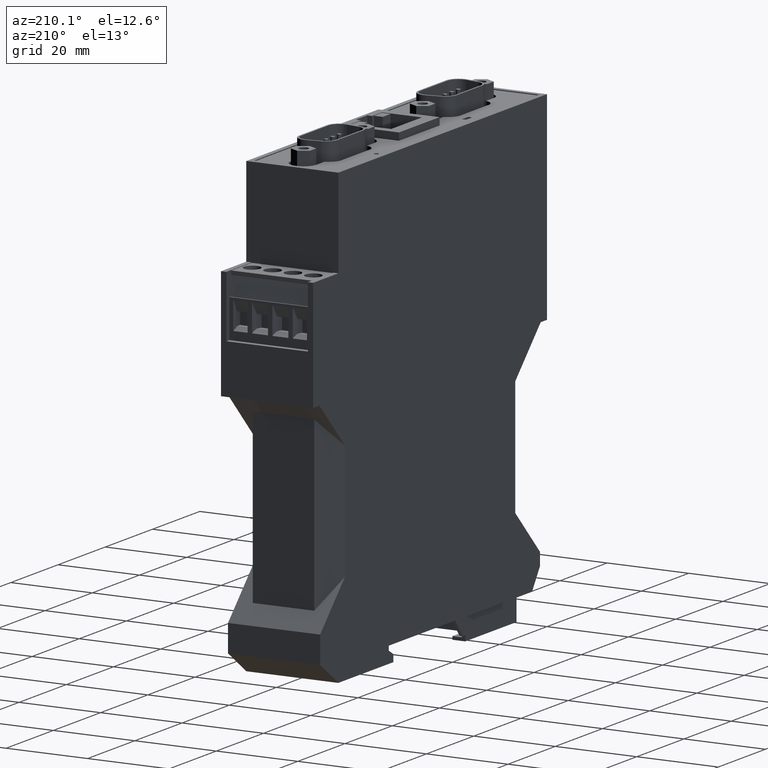
[diagram: clean part render]
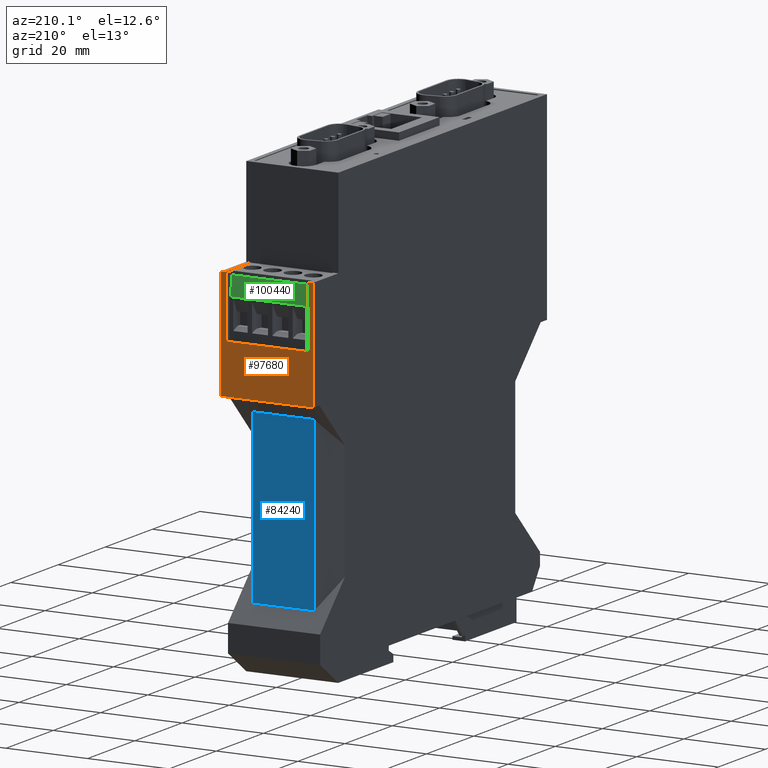
[diagram: same view with three faces highlighted in distinct colors, each labeled with its STEP entity id]
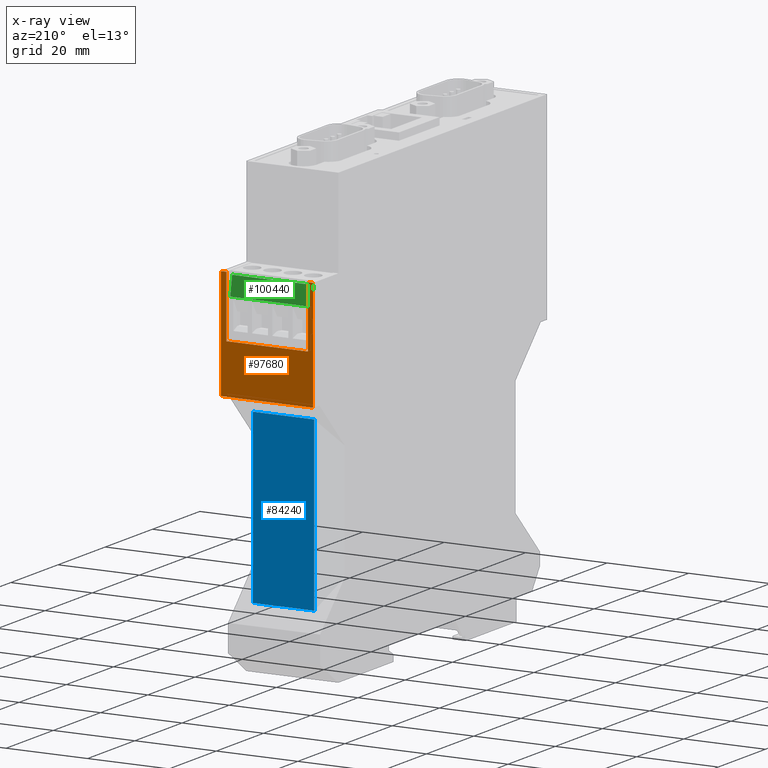
[diagram: x-ray of the same camera — body ghosted, the three highlighted faces saturated]
A machine part, auxiliary view with three faces highlighted in distinct colors.
The next image is the same camera in x-ray (body ghosted, the three faces saturated) — at least one of them is partly hidden behind the body in this view.
Their STEP definitions:

[orange] entity #97680 — the highlighted planar face has unit normal (0, 1, 0).
#920=CARTESIAN_POINT('',(32.0000000000386,57.9000000000013,0.));
#930=VERTEX_POINT('',#920);
#960=CARTESIAN_POINT('',(32.0000000000633,24.,0.));
#970=DIRECTION('',(7.27300000002176E-13,-1.,-0.));
#980=VECTOR('',#970,1.);
#990=LINE('',#960,#980);
#1000=CARTESIAN_POINT('',(32.0000000000188,85.1000000000079,0.));
#1010=VERTEX_POINT('',#1000);
#1020=EDGE_CURVE('',#1010,#930,#990,.T.);
#2750=CARTESIAN_POINT('',(31.9999999999779,85.1000000000079,22.6));
#2760=VERTEX_POINT('',#2750);
#2790=CARTESIAN_POINT('',(32.0000000000223,24.,22.6));
#2800=DIRECTION('',(-7.27300000002176E-13,1.,0.));
#2810=VECTOR('',#2800,1.);
#2820=LINE('',#2790,#2810);
#2830=CARTESIAN_POINT('',(31.9999999999977,57.9000000000013,22.6));
#2840=VERTEX_POINT('',#2830);
#2850=EDGE_CURVE('',#2840,#2760,#2820,.T.);
#83170=CARTESIAN_POINT('',(31.9999999999912,70.0000000000079,
21.3000000001629));
#83180=VERTEX_POINT('',#83170);
#83330=CARTESIAN_POINT('',(32.0000000000274,70.0000000000079,
1.30000000017318));
#83340=VERTEX_POINT('',#83330);
#83370=CARTESIAN_POINT('',(32.0000000000298,70.0000000000079,0.));
#83380=DIRECTION('',(1.81046150293795E-12,-2.21416216699985E-24,-1.));
#83390=VECTOR('',#83380,1.);
#83400=LINE('',#83370,#83390);
#83410=EDGE_CURVE('',#83180,#83340,#83400,.T.);
#83660=CARTESIAN_POINT('',(32.0000000000386,57.9000000000013,0.));
#83670=DIRECTION('',(1.81046150293795E-12,1.79027249274477E-25,-1.));
#83680=VECTOR('',#83670,1.);
#83690=LINE('',#83660,#83680);
#83700=EDGE_CURVE('',#2840,#930,#83690,.T.);
#86880=CARTESIAN_POINT('',(32.0000000000188,85.1000000000079,0.));
#86890=DIRECTION('',(-1.81046150293795E-12,2.21416216699985E-24,1.));
#86900=VECTOR('',#86890,1.);
#86910=LINE('',#86880,#86900);
#86920=CARTESIAN_POINT('',(32.0000000000165,85.1000000000079,
1.30000000017318));
#86930=VERTEX_POINT('',#86920);
#86940=EDGE_CURVE('',#1010,#86930,#86910,.T.);
#97170=CARTESIAN_POINT('',(32.0000000000188,85.1000000000079,0.));
#97180=DIRECTION('',(-1.81046150293795E-12,2.21416216699985E-24,1.));
#97190=VECTOR('',#97180,1.);
#97200=LINE('',#97170,#97190);
#97210=CARTESIAN_POINT('',(31.9999999999803,85.1000000000079,
21.3000000001629));
#97220=VERTEX_POINT('',#97210);
#97230=EDGE_CURVE('',#97220,#2760,#97200,.T.);
#97430=CARTESIAN_POINT('',(32.0000000000843,-7.9999999999573,
1.25000000017277));
#97440=DIRECTION('',(1.,7.27300000002176E-13,1.81046150293795E-12));
#97450=DIRECTION('',(1.81046150293795E-12,0.,-1.));
#97460=AXIS2_PLACEMENT_3D('',#97430,#97440,#97450);
#97470=PLANE('',#97460);
#97480=CARTESIAN_POINT('',(32.0000000000247,24.,21.3000000001629));
#97490=DIRECTION('',(-7.27300000002176E-13,1.,-2.21416216699985E-24));
#97500=VECTOR('',#97490,1.);
#97510=LINE('',#97480,#97500);
#97520=EDGE_CURVE('',#83180,#97220,#97510,.T.);
#97530=ORIENTED_EDGE('',*,*,#97520,.T.);
#97540=ORIENTED_EDGE('',*,*,#83410,.F.);
#97550=CARTESIAN_POINT('',(32.0000000000609,24.,1.30000000017318));
#97560=DIRECTION('',(7.27300000002176E-13,-1.,3.53066373273061E-24));
#97570=VECTOR('',#97560,1.);
#97580=LINE('',#97550,#97570);
#97590=EDGE_CURVE('',#86930,#83340,#97580,.T.);
#97600=ORIENTED_EDGE('',*,*,#97590,.T.);
#97610=ORIENTED_EDGE('',*,*,#86940,.T.);
#97620=ORIENTED_EDGE('',*,*,#1020,.F.);
#97630=ORIENTED_EDGE('',*,*,#83700,.T.);
#97640=ORIENTED_EDGE('',*,*,#2850,.F.);
#97650=ORIENTED_EDGE('',*,*,#97230,.T.);
#97660=EDGE_LOOP('',(#97650,#97640,#97630,#97620,#97610,#97600,#97540,
#97530));
#97670=FACE_OUTER_BOUND('',#97660,.T.);
#97680=ADVANCED_FACE('',(#97670),#97470,.T.);

[blue] entity #84240 — the highlighted planar face has unit normal (0, -1, -0).
#4680=CARTESIAN_POINT('',(25.0500000000874,12.0000000000026,
3.75277674973103));
#4690=VERTEX_POINT('',#4680);
#4720=CARTESIAN_POINT('',(25.0500000000873,24.,3.75277674973095));
#4730=DIRECTION('',(-6.60000000000277E-15,1.,-6.11991285341162E-15));
#4740=VECTOR('',#4730,1.);
#4750=LINE('',#4720,#4740);
#4760=CARTESIAN_POINT('',(25.0500000000871,53.599999999998,
3.75277674973077));
#4770=VERTEX_POINT('',#4760);
#4780=EDGE_CURVE('',#4690,#4770,#4750,.T.);
#5060=CARTESIAN_POINT('',(25.0500000000939,53.6000000000048,
18.8472232502124));
#5070=VERTEX_POINT('',#5060);
#5100=CARTESIAN_POINT('',(25.0500000000941,24.,18.8472232502123));
#5110=DIRECTION('',(-6.59999999999827E-15,1.,3.81051177665051E-15));
#5120=VECTOR('',#5110,1.);
#5130=LINE('',#5100,#5120);
#5140=CARTESIAN_POINT('',(25.0500000000942,11.9999999999957,
18.8472232502123));
#5150=VERTEX_POINT('',#5140);
#5160=EDGE_CURVE('',#5150,#5070,#5130,.T.);
#83890=CARTESIAN_POINT('',(25.0500000000854,53.5999999999963,0.));
#83900=DIRECTION('',(4.52799999999997E-13,4.52799999999993E-13,1.));
#83910=VECTOR('',#83900,1.);
#83920=LINE('',#83890,#83910);
#83930=EDGE_CURVE('',#4770,#5070,#83920,.T.);
#84080=CARTESIAN_POINT('',(25.0500000000904,68.5000000000004,
11.299999999981));
#84090=DIRECTION('',(-1.,-6.6E-15,4.528E-13));
#84100=DIRECTION('',(4.528E-13,0.,1.));
#84110=AXIS2_PLACEMENT_3D('',#84080,#84090,#84100);
#84120=PLANE('',#84110);
#84130=ORIENTED_EDGE('',*,*,#4780,.T.);
#84140=CARTESIAN_POINT('',(25.0500000000857,12.0000000000043,0.));
#84150=DIRECTION('',(-4.52800000000003E-13,4.52799999999919E-13,-1.));
#84160=VECTOR('',#84150,1.);
#84170=LINE('',#84140,#84160);
#84180=EDGE_CURVE('',#5150,#4690,#84170,.T.);
#84190=ORIENTED_EDGE('',*,*,#84180,.T.);
#84200=ORIENTED_EDGE('',*,*,#5160,.F.);
#84210=ORIENTED_EDGE('',*,*,#83930,.T.);
#84220=EDGE_LOOP('',(#84210,#84200,#84190,#84130));
#84230=FACE_OUTER_BOUND('',#84220,.T.);
#84240=ADVANCED_FACE('',(#84230),#84120,.F.);

[green] entity #100440 — the highlighted planar face has unit normal (0, 0.9848, 0.1736).
#98020=CARTESIAN_POINT('',(29.5387195026883,83.9860003350739,
21.3000000001629));
#98030=VERTEX_POINT('',#98020);
#98060=CARTESIAN_POINT('',(40.1158698265483,24.,21.3000000001629));
#98070=DIRECTION('',(-0.173648177666923,0.984807753012209,0.));
#98080=VECTOR('',#98070,1.);
#98090=LINE('',#98060,#98080);
#98100=CARTESIAN_POINT('',(30.3500000000092,79.3850000000071,
21.3000000001629));
#98110=VERTEX_POINT('',#98100);
#98120=EDGE_CURVE('',#98110,#98030,#98090,.T.);
#98460=CARTESIAN_POINT('',(40.1158698265483,24.,1.30000000018787));
#98470=DIRECTION('',(0.173648177666923,-0.984807753012209,
3.1431801605919E-13));
#98480=VECTOR('',#98470,1.);
#98490=LINE('',#98460,#98480);
#98500=CARTESIAN_POINT('',(29.5387195026883,83.9860003350739,
1.30000000016873));
#98510=VERTEX_POINT('',#98500);
#98520=CARTESIAN_POINT('',(30.3500000000092,79.3850000000071,
1.30000000017019));
#98530=VERTEX_POINT('',#98520);
#98540=EDGE_CURVE('',#98510,#98530,#98490,.T.);
#100090=CARTESIAN_POINT('',(29.5387195026883,83.9860003350738,
18.800000000168));
#100100=DIRECTION('',(-1.13152790739016E-17,6.41721364957217E-17,1.));
#100110=VECTOR('',#100100,1.);
#100120=LINE('',#100090,#100110);
#100130=EDGE_CURVE('',#98510,#98030,#100120,.T.);
#100280=CARTESIAN_POINT('',(29.6209356073298,83.5197296355405,
-3.09999999983205));
#100290=DIRECTION('',(0.984807753012209,0.173648177666923,0.));
#100300=DIRECTION('',(0.173648177666923,-0.984807753012209,-0.));
#100310=AXIS2_PLACEMENT_3D('',#100280,#100290,#100300);
#100320=PLANE('',#100310);
#100330=CARTESIAN_POINT('',(30.3500000000092,79.3850000000071,
18.800000000168));
#100340=DIRECTION('',(0.,0.,1.));
#100350=VECTOR('',#100340,1.);
#100360=LINE('',#100330,#100350);
#100370=EDGE_CURVE('',#98530,#98110,#100360,.T.);
#100380=ORIENTED_EDGE('',*,*,#100370,.F.);
#100390=ORIENTED_EDGE('',*,*,#98120,.F.);
#100400=ORIENTED_EDGE('',*,*,#100130,.T.);
#100410=ORIENTED_EDGE('',*,*,#98540,.F.);
#100420=EDGE_LOOP('',(#100410,#100400,#100390,#100380));
#100430=FACE_OUTER_BOUND('',#100420,.T.);
#100440=ADVANCED_FACE('',(#100430),#100320,.T.);